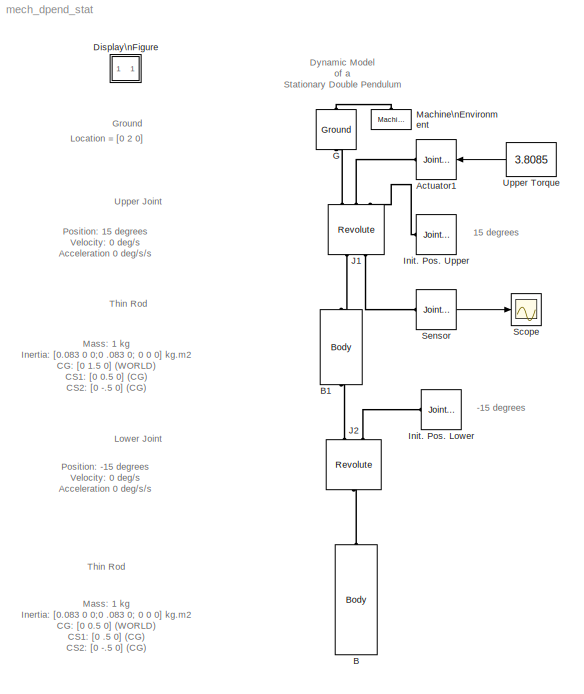
MODEL mech_dpend_stat
KIND model
BLOCK [Reference] Actuator1  REF=mblibv1/Sensors & \nActuators/Joint Actuator
  AccelerationUnits = m/s^2
  ActiveIO = on
  ActuationStyle = Force
  AngleUnits = deg
  ArcAccelerationUnits = deg/s^2
  ArcVelocityUnits = deg/s
  ClassName = JointActuator
  CoordPositionUnits = m
  DialogClass = MechanicalActuatorBlock
  ForceUnits = N
  Opaque = on
  PhysicalDomain = Mechanical
  PortType = blob
  Ports = [1, 0, 0, 0, 0, 0, 1]
  Primitive = R1
  ReferenceFrame = Absolute (INERTIAL)
  ShowPortLabels = on
  SourceBlock = mblibv1/Sensors & \nActuators/Joint Actuator
  SourceType = msb
  TorqueUnits = N-m
  VelocityUnits = m/s
  Width = 1
BLOCK [Reference] B  REF=mblibv1/Bodies/Body
  CG = Left$CG$[0 .5 0]$WORLD$WORLD$m$[0 0 0]$Euler X-Y-Z$deg$WORLD$false
  ClassName = Body
  Density = 1
  DensityUnits = kg/m^3
  DensityUse = false
  DialogClass = MechanicalBodyBlock
  Inertia = [0.083 0 0;0 .083  0; 0 0 0]
  InertiaUnits = kg*m^2
  LConnTagsString = CS1
  LeftPortType = workingframe
  Mass = 1
  MassUnits = kg
  PhysicalDomain = mechanical
  Ports = [0, 0, 0, 0, 0, 1]
  RightPortType = workingframe
  Shape = Cylinder
  ShapeDims = [1 1]
  ShapeUnits = m
  ShapeUse = false
  SourceBlock = mblibv1/Bodies/Body
  SourceType = msb
  SubClassName = Unknown
  WorkingFrames = Left$CS1$[0 .5 0]$CG$CG$m$[0 0 0]$Euler X-Y-Z$deg$WORLD$true#Right$CS2$[0 -.5 0]$CG$CG$m$[0 0 0]$Euler X-Y-Z$deg$WORLD$false
BLOCK [Reference] B1  REF=mblibv1/Bodies/Body
  CG = Left$CG$[0 1.5 0]$WORLD$WORLD$m$[0 0 0]$Euler X-Y-Z$deg$WORLD$false
  ClassName = Body
  Density = 1
  DensityUnits = kg/m^3
  DensityUse = false
  DialogClass = MechanicalBodyBlock
  Inertia = [0.083 0 0;0 .083  0; 0 0 0]
  InertiaUnits = kg*m^2
  LConnTagsString = CS1
  LeftPortType = workingframe
  Mass = 1
  MassUnits = kg
  PhysicalDomain = mechanical
  Ports = [0, 0, 0, 0, 0, 1, 1]
  RConnTagsString = CS2
  RightPortType = workingframe
  Shape = Cylinder
  ShapeDims = [1 1]
  ShapeUnits = m
  ShapeUse = false
  SourceBlock = mblibv1/Bodies/Body
  SourceType = msb
  SubClassName = Unknown
  WorkingFrames = Left$CS1$[0 .5 0]$CG$CG$m$[0 0 0]$Euler X-Y-Z$deg$WORLD$true#Right$CS2$[0 -.5 0]$CG$CG$m$[0 0 0]$Euler X-Y-Z$deg$WORLD$true
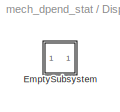
BLOCK [SubSystem] Display\nFigure
  Description = Help callback for stationary double pendulum model: mech_four_bar.  Opens Help browser to Type 19 marker at documentation for this tutorial model.
  MaskDisplay = image(imread('info.bmp'))
  MaskIconFrame = off
  MaskIconOpaque = on
  MaskIconRotate = none
  MaskIconUnits = normalized
  MaskSelfModifiable = on
  MaskType = Help callback
  MinAlgLoopOccurrences = off
  OpenFcn = pmhelpview([docroot '/toolbox/physmod/mech/mech.map'], 'mech_dpend_stat_help');
  Ports = []
  RTWSystemCode = Auto
  Tag = Help
  TreatAsAtomicUnit = off
BLOCK [SubSystem] Display\nFigure/EmptySubsystem
  MinAlgLoopOccurrences = off
  Ports = []
  RTWSystemCode = Auto
  TreatAsAtomicUnit = off
BLOCK [Reference] G  REF=mblibv1/Bodies/Ground
  ClassName = Ground
  CoordPosition = [0 2 0]
  CoordPositionUnits = m
  DialogClass = GroundBlock
  LeftPortType = env
  MachineId = [0 0]
  Opaque = on
  PhysicalDomain = Mechanical
  Ports = [0, 0, 0, 0, 0, 1, 1]
  RightPortType = workingframe
  ShowEnvPort = on
  ShowPortLabels = on
  SourceBlock = mblibv1/Bodies/Ground
  SourceType = msb
  StateVectorMgrId = -1
  UserData = DataTag0
  UserDataPersistent = on
BLOCK [Reference] Init. Pos. Lower  REF=mblibv1/Sensors & \nActuators/Joint Initial Condition
  AngleUnits = deg
  ArcVelocityUnits = deg/s
  ClassName = InitialCondition
  CoordPosition = -15
  CoordPositionUnits = m
  DialogClass = InitialConditionBlock
  InitialConditions = P1$false$0$m$rad$0$m/s$rad/s#P2$false$0$m$rad$0$m/s$rad/s#P3$false$0$m$rad$0$m/s$rad/s#R1$true$-15$m$deg$0.0$m/s$deg/s#R2$false$0$m$rad$0$m/s$rad/s#R3$false$0$m$rad$0$m/s$rad/s#S$false$0$m$rad$0$m/s$rad/s
  Opaque = on
  PhysicalDomain = Mechanical
  Ports = [0, 0, 0, 0, 0, 0, 1]
  Primitive = R1
  ShowPortLabels = on
  SourceBlock = mblibv1/Sensors & \nActuators/Joint Initial Condition
  SourceType = msb
  Velocity = 0.0
  VelocityUnits = m/s
BLOCK [Reference] Init. Pos. Upper  REF=mblibv1/Sensors & \nActuators/Joint Initial Condition
  AngleUnits = deg
  ArcVelocityUnits = deg/s
  ClassName = InitialCondition
  CoordPosition = 15
  CoordPositionUnits = m
  DialogClass = InitialConditionBlock
  InitialConditions = P1$false$0$m$rad$0$m/s$rad/s#P2$false$0$m$rad$0$m/s$rad/s#P3$false$0$m$rad$0$m/s$rad/s#R1$true$15$m$deg$0.0$m/s$deg/s#R2$false$0$m$rad$0$m/s$rad/s#R3$false$0$m$rad$0$m/s$rad/s#S$false$0$m$rad$0$m/s$rad/s
  Opaque = on
  PhysicalDomain = Mechanical
  Ports = [0, 0, 0, 0, 0, 0, 1]
  Primitive = R1
  ShowPortLabels = on
  SourceBlock = mblibv1/Sensors & \nActuators/Joint Initial Condition
  SourceType = msb
  Velocity = 0.0
  VelocityUnits = m/s
BLOCK [Reference] J1  REF=mblibv1/Joints/Revolute
  ClassName = Joint
  CutJoint = off
  DialogClass = JointBlock
  LConnTagsString = __newl0|SA1|SA2
  LeftPortType = blob
  MarkAsCut = off
  NumSAPorts = 3
  PhysicalDomain = mechanical
  Ports = [0, 0, 0, 0, 0, 3, 2]
  PrimitiveProps = R1$WORLD$[0 0 1]$revolute
  Primitives = revolute
  RConnTagsString = __newr0|SA1
  RightPortType = blob
  SourceBlock = mblibv1/Joints/Revolute
  SourceType = msb
  SubClassName = Unknown
BLOCK [Reference] J2  REF=mblibv1/Joints/Revolute
  ClassName = Joint
  CutJoint = off
  DialogClass = JointBlock
  LConnTagsString = __newl0|SA1
  LeftPortType = blob
  MarkAsCut = off
  NumSAPorts = 1
  PhysicalDomain = mechanical
  Ports = [0, 0, 0, 0, 0, 2, 1]
  PrimitiveProps = R1$WORLD$[0 0 1]$revolute
  Primitives = revolute
  RConnTagsString = __newr0
  RightPortType = blob
  SourceBlock = mblibv1/Joints/Revolute
  SourceType = msb
  SubClassName = Unknown
BLOCK [Reference] Machine\nEnvironment  REF=mblibv1/Bodies/Machine\nEnvironment
  AnalysisType = Forward dynamics
  AngularAssemblyTolerance = 1e-3
  AngularAssemblyToleranceUnits = rad
  ClassName = Environment
  ConstraintAbsTolerance = 1e-4
  ConstraintRelTolerance = 1e-4
  ConstraintSolverType = Stabilizing
  DialogController = MECH.DialogSource
  DialogTemplateClass = MECH.MachineEnvironment
  Dimensionality = 3D Only
  Gravity = [0 -9.81 0]
  GravityAsSignal = off
  GravityUnits = m/s^2
  LinearAssemblyTolerance = 1e-3
  LinearAssemblyToleranceUnits = m
  Opaque = on
  PerturbationSize = 1e-5
  PhysicalDomain = Mechanical
  PortType = env
  Ports = [0, 0, 0, 0, 0, 0, 1]
  ShowPortLabels = on
  SourceBlock = mblibv1/Bodies/Machine\nEnvironment
  SourceType = Mechanical
  StatePerturbationType = Fixed
  SyncWhenCopied = off
  Tag = Factory ground
  UseRobustSingularityHandling = off
  VisualizeMachine = on
BLOCK [Scope] Scope
  DataFormat = StructureWithTime
  NumInputPorts = 1
  Ports = [1]
  YMax = 16
  YMin = 14
BLOCK [Reference] Sensor  REF=mblibv1/Sensors & \nActuators/Joint Sensor
  Acceleration = off
  AccelerationUnits = m/s^2
  ActiveIO = on
  Angle = on
  AngleUnits = deg
  ArcAcceleration = off
  ArcAccelerationUnits = deg/s^2
  ArcVelocity = off
  ArcVelocityUnits = deg/s
  ClassName = JointSensor
  CoordPosition = on
  CoordPositionUnits = m
  DialogClass = MechanicalSensorBlock
  Force = off
  ForceUnits = N
  Muxed = on
  Opaque = on
  OutputVector = [ 1 ]
  PhysicalDomain = Mechanical
  PortType = blob
  Ports = [0, 1, 0, 0, 0, 1]
  Pose = off
  Primitive = R1
  Quaternion = on
  QuaternionDDT = off
  QuaternionDT = off
  QuaternionUnits = off
  ReactionForce = off
  ReactionForceUnits = N
  ReactionMoment = off
  ReactionMomentUnits = N-m
  ReactionReferenceFrame = Absolute (World)
  ReactionSensedSide = Base
  ReferenceFrame = Absolute (INERTIAL)
  ShowPortLabels = on
  SourceBlock = mblibv1/Sensors & \nActuators/Joint Sensor
  SourceType = msb
  Torque = off
  TorqueUnits = N-m
  Velocity = off
  VelocityUnits = m/s
  Width = 1
BLOCK [Constant] Upper Torque
  Value = 3.8085
ANNOTATION (root): -15 degrees
ANNOTATION (root): 15 degrees
ANNOTATION (root): Dynamic Model \nof a\nStationary Double Pendulum
ANNOTATION (root): Ground
ANNOTATION (root): Location = [0 2 0]
ANNOTATION (root): Lower Joint
ANNOTATION (root): Mass: 1 kg\nInertia: [0.083 0 0;0 .083 0; 0 0 0] kg.m2\nCG: [0 0.5 0] (WORLD)\nCS1: [0 .5 0] (CG)\nCS2: [0 -.5 0] (CG)
ANNOTATION (root): Mass: 1 kg\nInertia: [0.083 0 0;0 .083 0; 0 0 0] kg.m2\nCG: [0 1.5 0] (WORLD)\nCS1: [0 0.5 0] (CG)\nCS2: [0 -.5 0] (CG)
ANNOTATION (root): Position: -15 degrees\nVelocity: 0 deg/s\nAcceleration 0 deg/s/s
ANNOTATION (root): Position: 15 degrees\nVelocity: 0 deg/s\nAcceleration 0 deg/s/s
ANNOTATION (root): Thin Rod
ANNOTATION (root): Upper Joint
LINE Sensor:1 -> Scope:1
LINE Upper Torque:1 -> Actuator1:1
PLINE Actuator1:RConn1 -- J1:LConn2
PLINE B1:LConn1 -- J1:RConn1
PLINE B1:RConn1 -- J2:LConn1
PLINE B:LConn1 -- J2:RConn1
PLINE G:LConn1 -- Machine\nEnvironment:RConn1
PLINE G:RConn1 -- J1:LConn1
PLINE Init. Pos. Lower:RConn1 -- J2:LConn2
PLINE Init. Pos. Upper:RConn1 -- J1:LConn3
PLINE J1:RConn2 -- Sensor:LConn1
